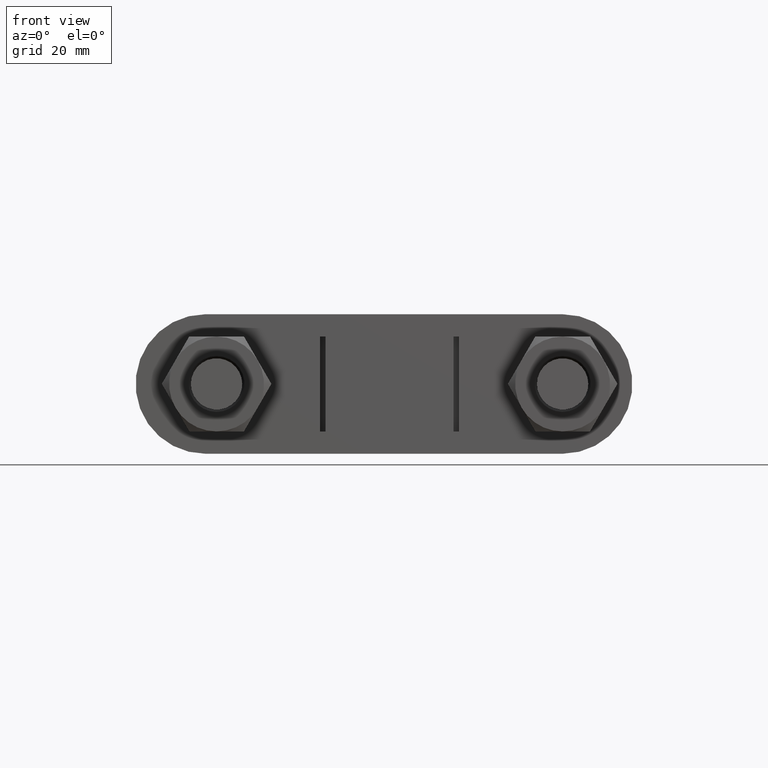
[diagram: clean part render]
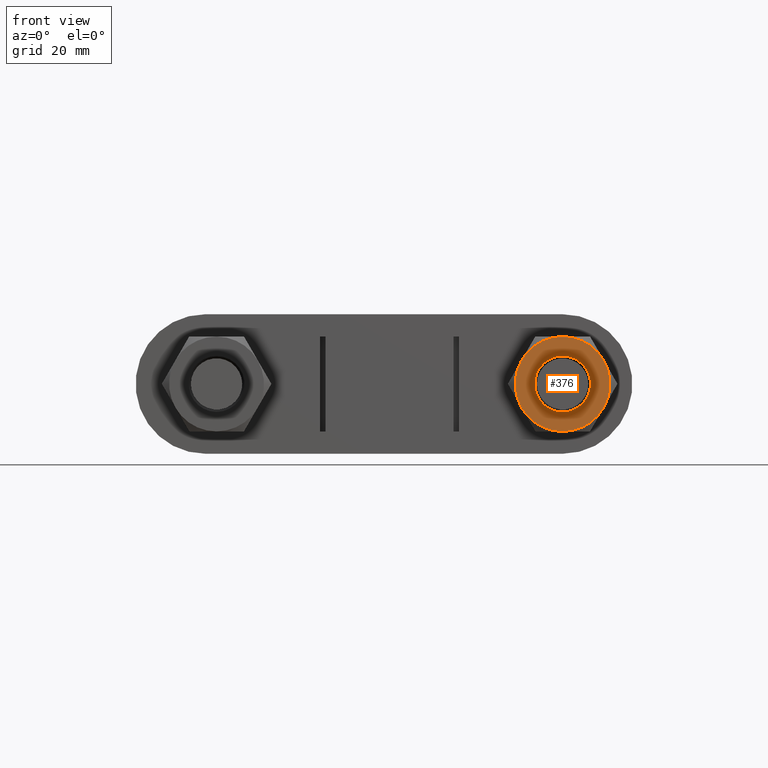
[diagram: same view with one face highlighted and labeled with its STEP entity id]
A machine part, front view. The second image highlights one B-rep face of the part: STEP entity #376.
In plain terms, the highlighted planar face has unit normal (0, 1, 0).
Its self-contained STEP definition (entity closure, byte-faithful):
#376 = ADVANCED_FACE( '', ( #627, #628 ), #629, .F. );
#627 = FACE_OUTER_BOUND( '', #1705, .T. );
#628 = FACE_BOUND( '', #1706, .T. );
#629 = PLANE( '', #1707 );
#1705 = EDGE_LOOP( '', ( #2500, #2501, #2502, #2503, #2504, #2505 ) );
#1706 = EDGE_LOOP( '', ( #2506 ) );
#1707 = AXIS2_PLACEMENT_3D( '', #2507, #2508, #2509 );
#2500 = ORIENTED_EDGE( '', *, *, #2740, .F. );
#2501 = ORIENTED_EDGE( '', *, *, #2707, .F. );
#2502 = ORIENTED_EDGE( '', *, *, #2749, .F. );
#2503 = ORIENTED_EDGE( '', *, *, #2743, .F. );
#2504 = ORIENTED_EDGE( '', *, *, #2701, .F. );
#2505 = ORIENTED_EDGE( '', *, *, #2713, .F. );
#2506 = ORIENTED_EDGE( '', *, *, #2717, .T. );
#2507 = CARTESIAN_POINT( '', ( 31.0000000000000, 17.0000000000012, 5.40357553624161E-015 ) );
#2508 = DIRECTION( '', ( 2.29561756065154E-047, 1.00000000000000, 3.06151588455594E-016 ) );
#2509 = DIRECTION( '', ( 1.00000000000000, 0.000000000000000, -7.49830360911067E-032 ) );
#2701 = EDGE_CURVE( '', #3056, #3058, #3059, .T. );
#2707 = EDGE_CURVE( '', #3069, #3070, #3071, .T. );
#2713 = EDGE_CURVE( '', #3079, #3056, #3080, .T. );
#2717 = EDGE_CURVE( '', #3086, #3086, #3087, .T. );
#2740 = EDGE_CURVE( '', #3070, #3079, #3126, .T. );
#2743 = EDGE_CURVE( '', #3058, #3090, #3129, .T. );
#2749 = EDGE_CURVE( '', #3090, #3069, #3137, .T. );
#3056 = VERTEX_POINT( '', #3832 );
#3058 = VERTEX_POINT( '', #3839 );
#3059 = CIRCLE( '', #3840, 8.50000000000000 );
#3069 = VERTEX_POINT( '', #3857 );
#3070 = VERTEX_POINT( '', #3858 );
#3071 = CIRCLE( '', #3859, 8.50000000000000 );
#3079 = VERTEX_POINT( '', #3884 );
#3080 = CIRCLE( '', #3885, 8.50000000000000 );
#3086 = VERTEX_POINT( '', #3901 );
#3087 = CIRCLE( '', #3902, 5.00000000000000 );
#3090 = VERTEX_POINT( '', #3905 );
#3126 = CIRCLE( '', #3972, 8.50000000000000 );
#3129 = CIRCLE( '', #3981, 8.50000000000000 );
#3137 = CIRCLE( '', #3991, 8.50000000000000 );
#3832 = CARTESIAN_POINT( '', ( 23.6387840677972, 17.0000000000012, 4.24999999993934 ) );
#3839 = CARTESIAN_POINT( '', ( 30.9999999999294, 17.0000000000011, 8.49999999999984 ) );
#3840 = AXIS2_PLACEMENT_3D( '', #4252, #4253, #4254 );
#3857 = CARTESIAN_POINT( '', ( 38.3612159322028, 17.0000000000012, -4.24999999993933 ) );
#3858 = CARTESIAN_POINT( '', ( 31.0000000000177, 17.0000000000012, -8.49999999997945 ) );
#3859 = AXIS2_PLACEMENT_3D( '', #4263, #4264, #4265 );
#3884 = CARTESIAN_POINT( '', ( 23.6387840678677, 17.0000000000007, -4.25000000005978 ) );
#3885 = AXIS2_PLACEMENT_3D( '', #4268, #4269, #4270 );
#3901 = CARTESIAN_POINT( '', ( 31.0000000000000, 17.0000000000012, 5.00000000000001 ) );
#3902 = AXIS2_PLACEMENT_3D( '', #4274, #4275, #4276 );
#3905 = CARTESIAN_POINT( '', ( 38.3612159321323, 17.0000000000007, 4.25000000005975 ) );
#3972 = AXIS2_PLACEMENT_3D( '', #4309, #4310, #4311 );
#3981 = AXIS2_PLACEMENT_3D( '', #4313, #4314, #4315 );
#3991 = AXIS2_PLACEMENT_3D( '', #4327, #4328, #4329 );
#4252 = CARTESIAN_POINT( '', ( 31.0000000000000, 17.0000000000012, 5.40357553624161E-015 ) );
#4253 = DIRECTION( '', ( 2.29561756065154E-047, 1.00000000000000, 3.06151588455594E-016 ) );
#4254 = DIRECTION( '', ( 0.000000000000000, -3.06151588455594E-016, 1.00000000000000 ) );
#4263 = CARTESIAN_POINT( '', ( 31.0000000000000, 17.0000000000012, 5.40357553624161E-015 ) );
#4264 = DIRECTION( '', ( 2.29561756065154E-047, 1.00000000000000, 3.06151588455594E-016 ) );
#4265 = DIRECTION( '', ( 0.000000000000000, -3.06151588455594E-016, 1.00000000000000 ) );
#4268 = CARTESIAN_POINT( '', ( 31.0000000000000, 17.0000000000012, 5.40357553624161E-015 ) );
#4269 = DIRECTION( '', ( 2.29561756065154E-047, 1.00000000000000, 3.06151588455594E-016 ) );
#4270 = DIRECTION( '', ( 0.000000000000000, -3.06151588455594E-016, 1.00000000000000 ) );
#4274 = CARTESIAN_POINT( '', ( 31.0000000000000, 17.0000000000012, 5.40357553624161E-015 ) );
#4275 = DIRECTION( '', ( 2.29561756065154E-047, 1.00000000000000, 3.06151588455594E-016 ) );
#4276 = DIRECTION( '', ( 0.000000000000000, -3.06151588455594E-016, 1.00000000000000 ) );
#4309 = CARTESIAN_POINT( '', ( 31.0000000000000, 17.0000000000012, 5.40357553624161E-015 ) );
#4310 = DIRECTION( '', ( 2.29561756065154E-047, 1.00000000000000, 3.06151588455594E-016 ) );
#4311 = DIRECTION( '', ( 0.000000000000000, -3.06151588455594E-016, 1.00000000000000 ) );
#4313 = CARTESIAN_POINT( '', ( 31.0000000000000, 17.0000000000012, 5.40357553624161E-015 ) );
#4314 = DIRECTION( '', ( 2.29561756065154E-047, 1.00000000000000, 3.06151588455594E-016 ) );
#4315 = DIRECTION( '', ( 0.000000000000000, -3.06151588455594E-016, 1.00000000000000 ) );
#4327 = CARTESIAN_POINT( '', ( 31.0000000000000, 17.0000000000012, 5.40357553624161E-015 ) );
#4328 = DIRECTION( '', ( 2.29561756065154E-047, 1.00000000000000, 3.06151588455594E-016 ) );
#4329 = DIRECTION( '', ( 0.000000000000000, -3.06151588455594E-016, 1.00000000000000 ) );